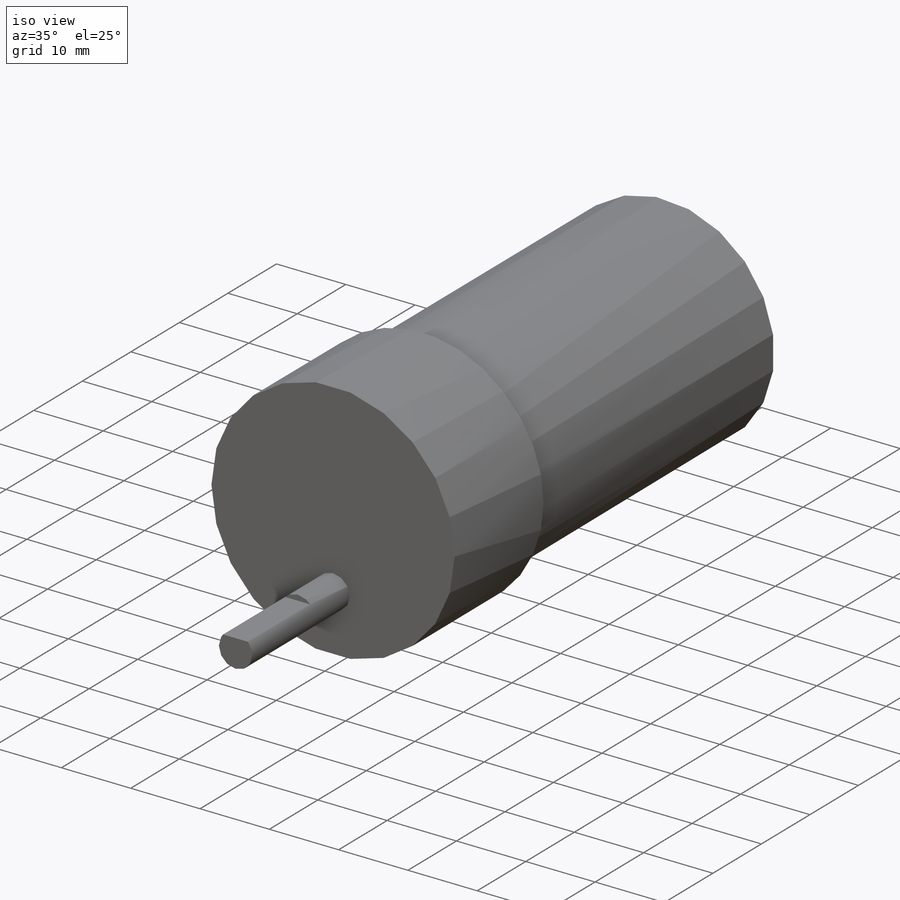
[diagram: iso view]
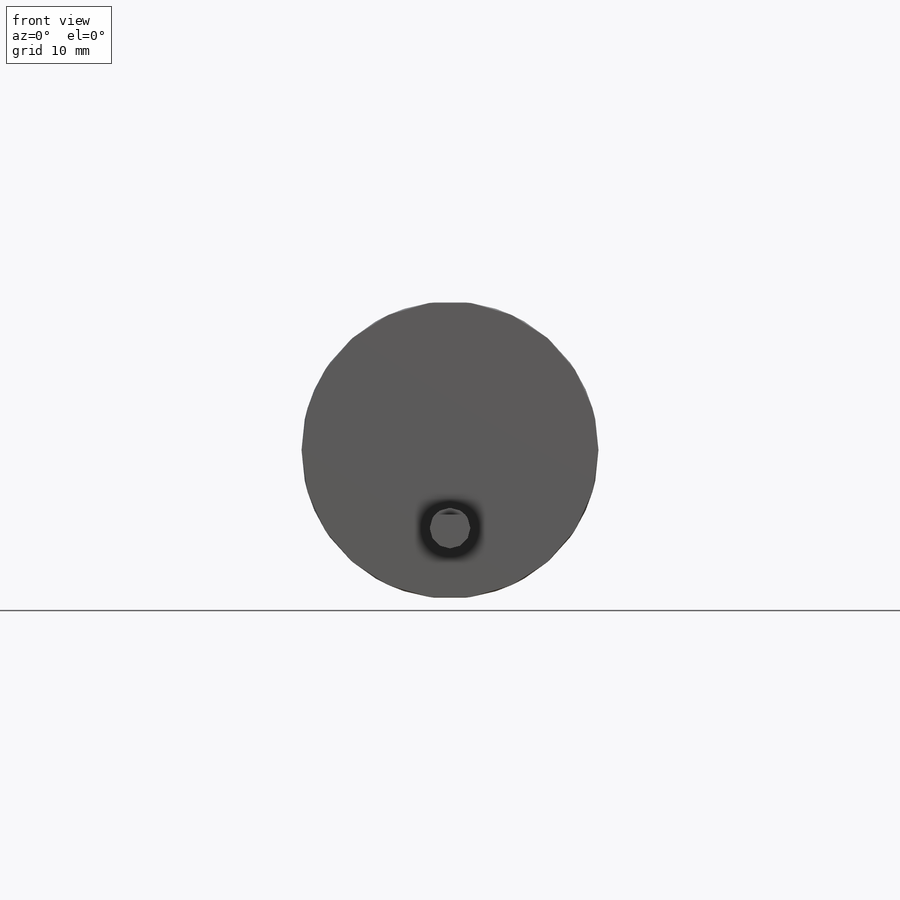
[diagram: front view]
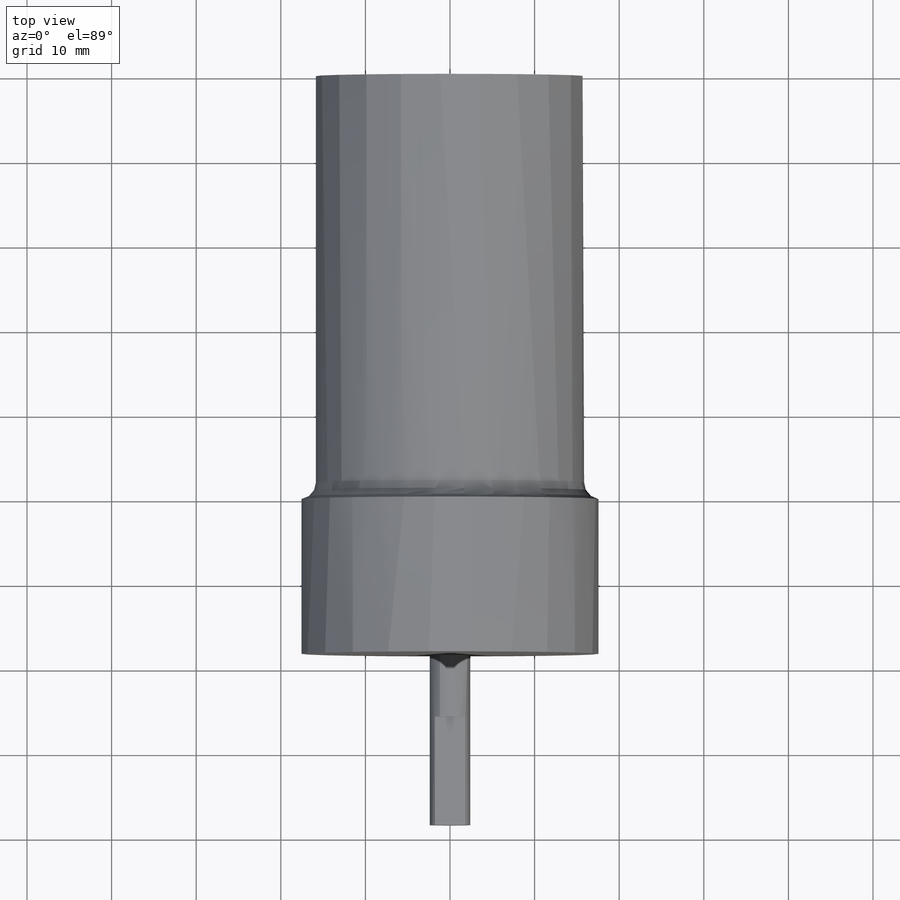
[diagram: top view]
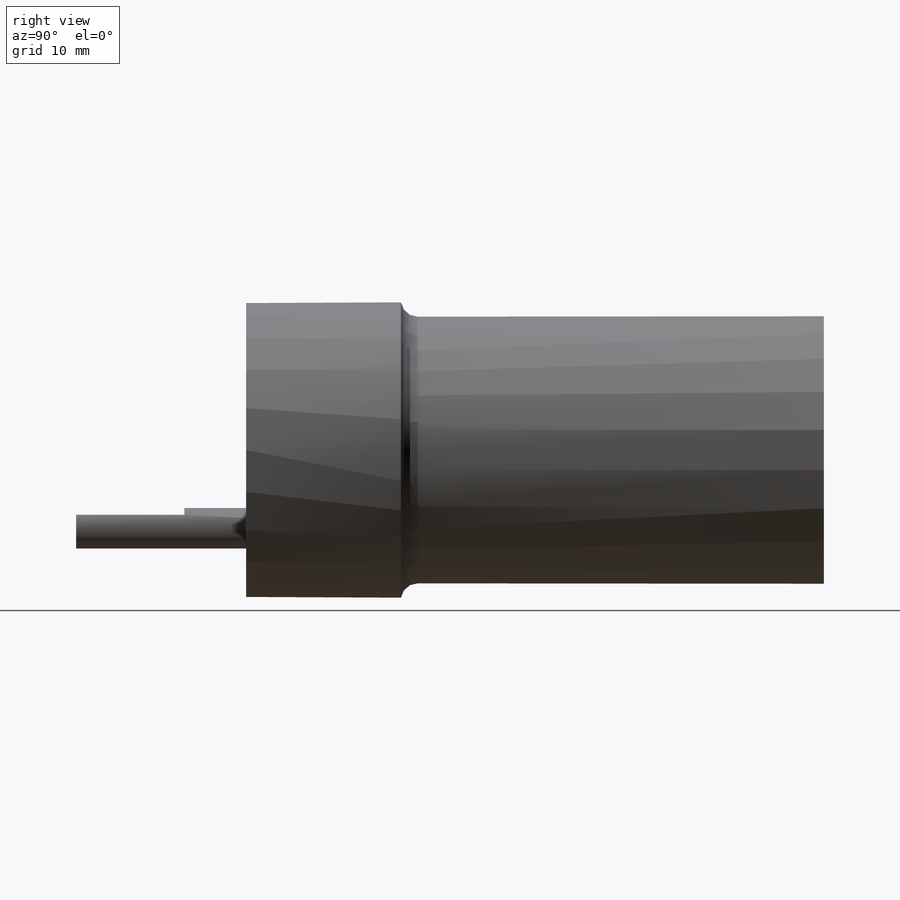
[diagram: right view]
SOLIDWORKS PART (.sldprt)
format: sldprt  version: not decoded by parser v0  size: 205,312 bytes
history: native  units: mm
features: sketch x5, extrude x2, cut_extrude x2, material x1, fillet x1 (+12 scaffold rows collapsed)
feature tree (23):
  scaffold x12  (default folders/planes/origin — collapsed)
  material  "Material <not specified>"
  sketch  "Sketch2"  dims[D1=35.1mm]
  extrude  "Boss-Extrude1"  Depth=68.3mm
  sketch  "Sketch3"  dims[D1=31.7mm]
  sketch  "Sketch4"  dims[D1=0.0mm]
  cut_extrude  "Cut-Extrude1"  Depth=50mm
  sketch  "Sketch5"  dims[c1.D1=4.8mm c1.D2=35.1mm c2.D1=~9.29937mm c2.D2=9.25mm]
  extrude  "Boss-Extrude3"  Depth=20.1mm
  sketch  "Sketch6"  dims[D1=4.0mm]
  cut_extrude  "Cut-Extrude2"  Depth=12.8mm
  fillet  "Fillet1"  Radius=2mm
decode coverage: 10 of 10 modeling features carry decoded parameters
note: ~ marks probable driven/reference dimensions
note: suppression state not decoded; provenance and decode notes live in map.json
